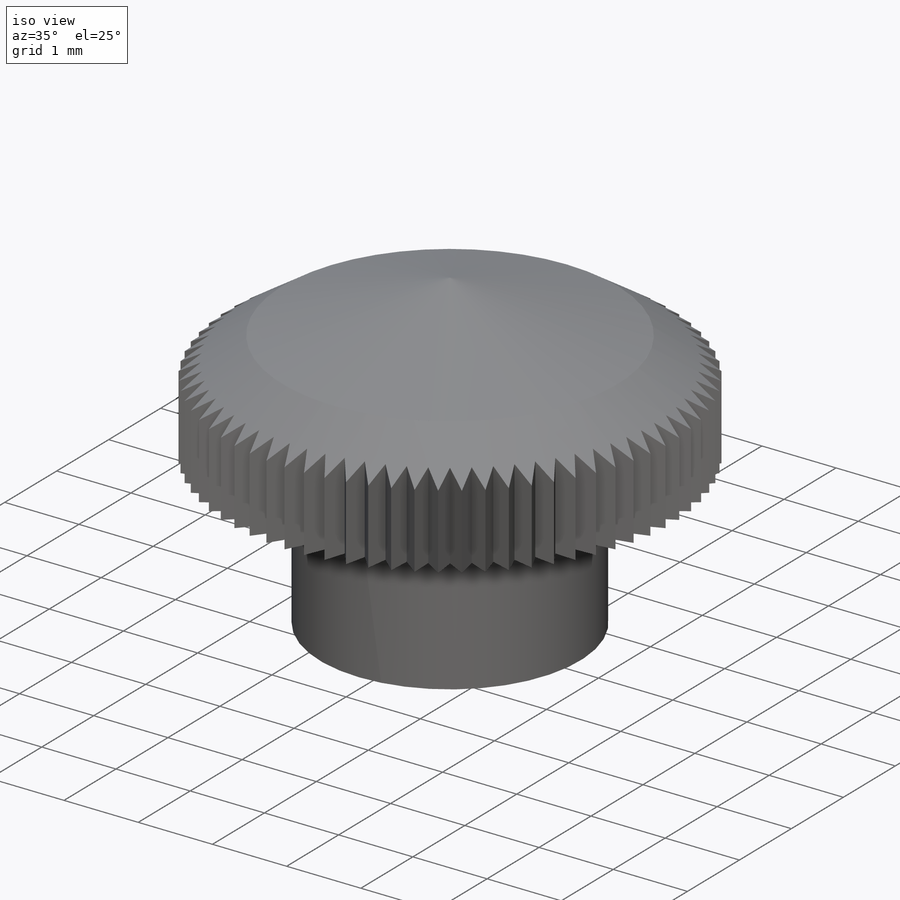
[diagram: iso view]
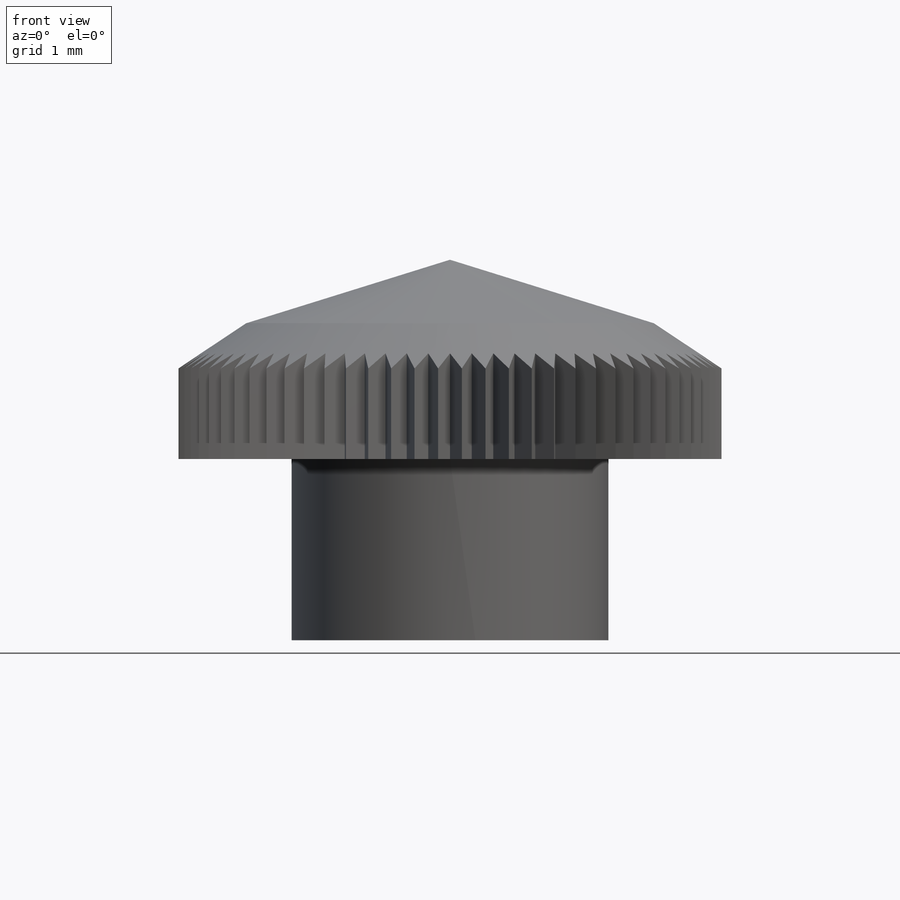
[diagram: front view]
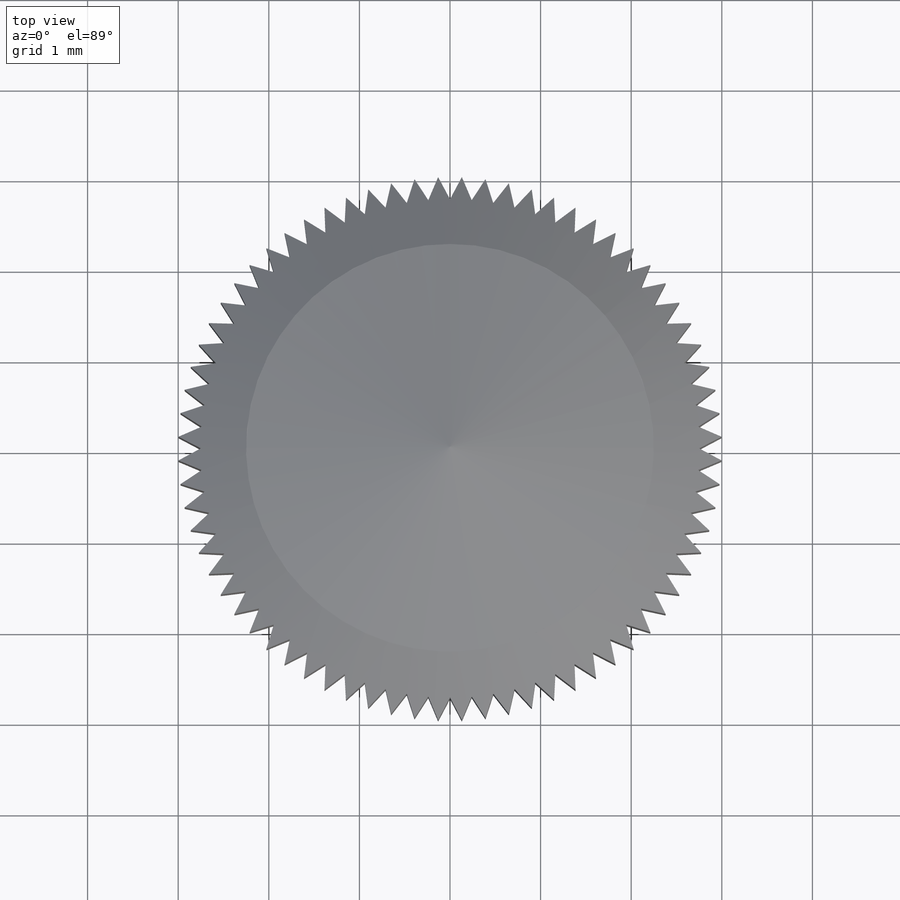
[diagram: top view]
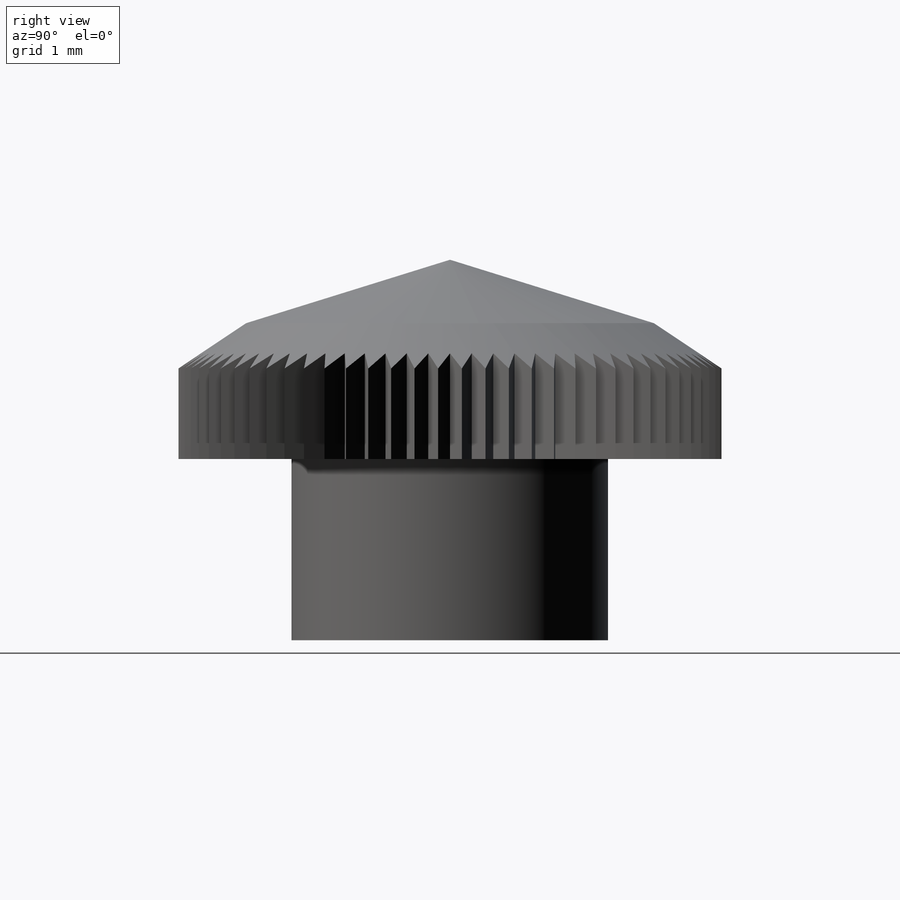
[diagram: right view]
SOLIDWORKS PART (.sldprt)
format: sldprt  version: not decoded by parser v0  size: 546,304 bytes
history: native  units: mm
features: sketch x4, plane x3, material x1, revolve x1, cut_extrude x1, pattern_circular x1, hole x1, thread x1 (+8 scaffold rows collapsed)
feature tree (21):
  scaffold x8  (default folders/planes/origin — collapsed)
  material  "Material <sin especificar>"
  plane  "Alzado"
  plane  "Planta"
  plane  "Vista lateral"
  sketch  "Croquis1"  dims[c1.D1=6.0mm c1.D2=1.0mm c1.D3=1.0mm c1.D4=7.0mm c1.D5=1.5mm c1.D6=2.2mm c1.D7=1.5mm c1.D8=0.25mm c1.D9=1.0mm c2.D4=1.0mm c2.D9=5.0mm c2.D10=4.0mm c2.D11=5.0mm c2.D12=1.0mm c2.D13=5.0mm c3.D11=~9.588336mm c4.D11=120.0deg c4.D13=5.0mm c4.D14=4.5mm c4.D3=1.5mm c4.D4=0.25mm c4.D7=1.25mm c4.D2=2.0mm c4.D5=1.5mm c4.D9=2.25mm c4.D10=1.0mm c5.D13=1.5mm]
  revolve  "Revolución1"  Angle=360deg
  sketch  "Croquis3"  dims[c1.D2=5.5mm c1.D1=~6.86372mm c2.D1=2.5deg c2.D2=7.0mm c3.D2=10.0deg c3.D3=7.0mm c4.D3=2.5deg]
  cut_extrude  "Cortar-Extruir1"  [1 undecoded]
  pattern_circular  "MatrizC1"  Count=72 Angle=360deg
  hole  "Taladro roscado M1x0.251"  [1 undecoded]
  sketch  "Croquis5"
  thread  "Rosca de taladro1"  Diameter=2mm  [1 undecoded]
  sketch  "Croquis4"  dims[hole-wizard template sketch: 46 standard entries collapsed; hole parameters kept: c15.Diámetro de perforador para roscar=0.75mm c15.Profundidad de perforador para roscar=2.5mm c15.D3=~14.816244mm c15.Ángulo de perforador=118.0deg]
decode coverage: 6 of 9 modeling features carry decoded parameters
note: ~ marks probable driven/reference dimensions
note: 3 parameter values undecoded
note: suppression state not decoded; provenance and decode notes live in map.json
